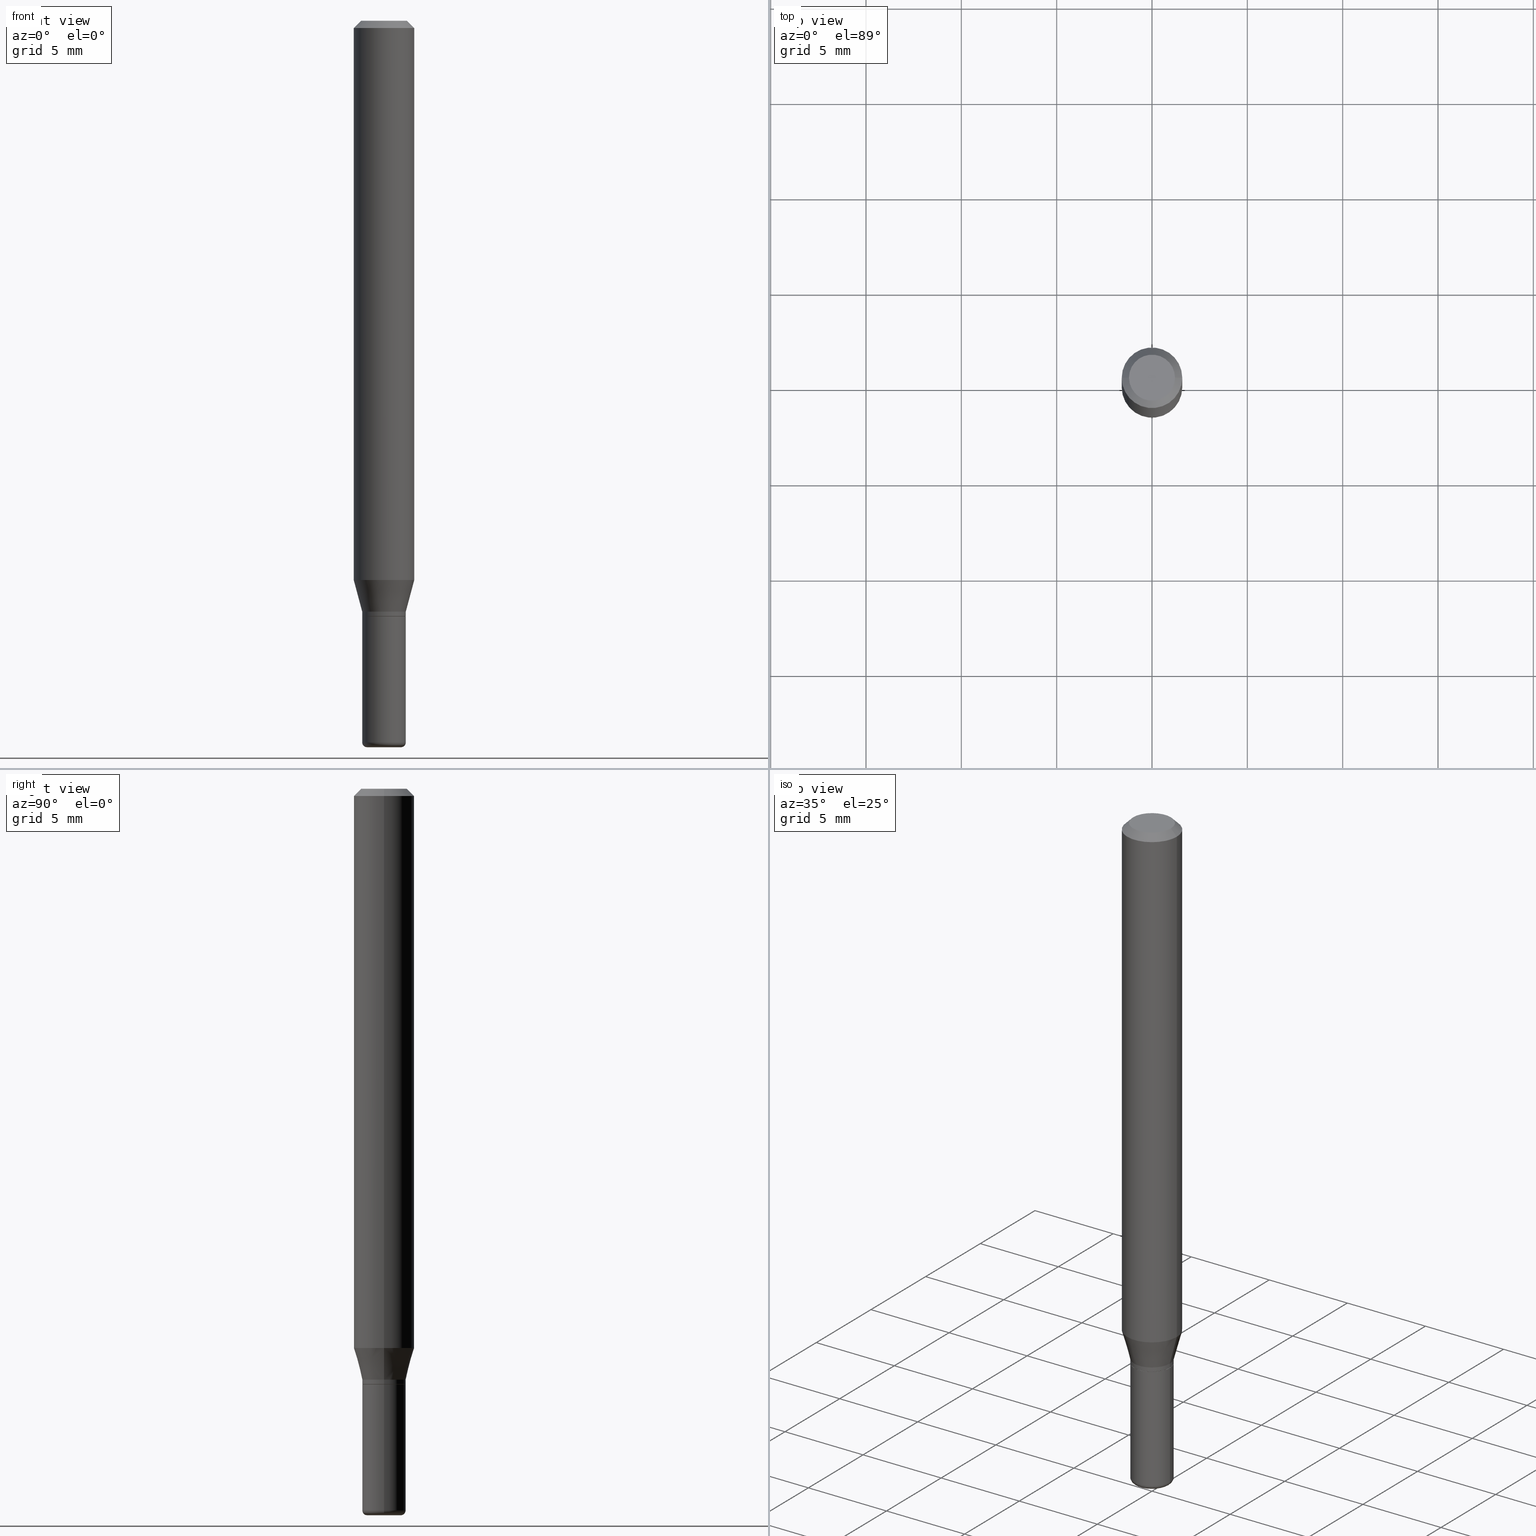
[diagram: canonical four-view strip — front | top / right | iso, engineering-drawing reading convention]
A machine part, canonical four-view strip (front | top / right | iso — engineering-drawing reading convention). The complete STEP part file that produces these views, byte-faithful:
ISO-10303-21;
HEADER;
FILE_DESCRIPTION (( 'STEP AP203' ),
    '1' );
FILE_NAME ('09203.STEP',
    '2024-02-29T23:21:32',
    ( '' ),
    ( '' ),
    'SwSTEP 2.0',
    'SolidWorks 2023',
    '' );
FILE_SCHEMA (( 'CONFIG_CONTROL_DESIGN' ));
ENDSEC;

DATA;
#1 = DIRECTION ( 'NONE',  ( 1.000000000000000000, -6.982962677686273021E-15, 0.000000000000000000 ) ) ;
#2 = ORIENTED_EDGE ( 'NONE', *, *, #108, .F. ) ;
#3 = ORIENTED_EDGE ( 'NONE', *, *, #396, .F. ) ;
#4 = CARTESIAN_POINT ( 'NONE',  ( 3.316907271900976589E-16, 0.04750000000000000749, -2.925296391183627249E-17 ) ) ;
#5 = CC_DESIGN_PERSON_AND_ORGANIZATION_ASSIGNMENT ( #228, #393, ( #162 ) ) ;
#6 = FACE_OUTER_BOUND ( 'NONE', #305, .T. ) ;
#7 = EDGE_LOOP ( 'NONE', ( #182, #146, #114, #389 ) ) ;
#8 = AXIS2_PLACEMENT_3D ( 'NONE', #392, #224, #498 ) ;
#9 = VECTOR ( 'NONE', #363, 39.37007874015748143 ) ;
#10 = FACE_OUTER_BOUND ( 'NONE', #7, .T. ) ;
#11 = VERTEX_POINT ( 'NONE', #269 ) ;
#12 = CC_DESIGN_PERSON_AND_ORGANIZATION_ASSIGNMENT ( #474, #151, ( #184 ) ) ;
#13 =( NAMED_UNIT ( * ) SI_UNIT ( $, .STERADIAN. ) SOLID_ANGLE_UNIT ( ) );
#14 = ORIENTED_EDGE ( 'NONE', *, *, #246, .F. ) ;
#15 = PERSON_AND_ORGANIZATION_ROLE ( 'design_owner' ) ;
#16 = ORIENTED_EDGE ( 'NONE', *, *, #435, .F. ) ;
#17 = DIRECTION ( 'NONE',  ( 7.105427357601001859E-15, 1.000000000000000000, -3.491481338843145583E-15 ) ) ;
#18 = CONICAL_SURFACE ( 'NONE', #76, 0.06250000000000000000, 0.7853981633974488341 ) ;
#19 = APPROVAL_DATE_TIME ( #267, #130 ) ;
#20 = AXIS2_PLACEMENT_3D ( 'NONE', #4, #173, #454 ) ;
#21 = EDGE_CURVE ( 'NONE', #216, #333, #379, .T. ) ;
#22 = ORIENTED_EDGE ( 'NONE', *, *, #477, .T. ) ;
#23 = FACE_OUTER_BOUND ( 'NONE', #493, .T. ) ;
#24 = COORDINATED_UNIVERSAL_TIME_OFFSET ( 5, 0, .BEHIND. ) ;
#25 = DIRECTION ( 'NONE',  ( -2.445468806185136597E-29, 3.491481338843145583E-15, 1.000000000000000000 ) ) ;
#26 = EDGE_CURVE ( 'NONE', #141, #43, #506, .T. ) ;
#27 = APPROVAL_DATE_TIME ( #229, #52 ) ;
#28 = DIRECTION ( 'NONE',  ( -2.445468806185136597E-29, 3.491481338843145583E-15, 1.000000000000000000 ) ) ;
#29 = CONICAL_SURFACE ( 'NONE', #366, 0.04499999999999995670, 0.2617993877991494633 ) ;
#30 = ORGANIZATION ( 'UNSPECIFIED', 'UNSPECIFIED', '' ) ;
#31 = LINE ( 'NONE', #155, #181 ) ;
#32 = CALENDAR_DATE ( 2024, 29, 2 ) ;
#33 = EDGE_CURVE ( 'NONE', #72, #310, #420, .T. ) ;
#34 = ADVANCED_FACE ( 'NONE', ( #6 ), #289, .T. ) ;
#35 = VERTEX_POINT ( 'NONE', #104 ) ;
#36 = CARTESIAN_POINT ( 'NONE',  ( 2.983471943545866670E-29, -4.259607233388637524E-15, -1.220000000000000195 ) ) ;
#37 = EDGE_LOOP ( 'NONE', ( #410, #87, #291, #14 ) ) ;
#38 = FACE_OUTER_BOUND ( 'NONE', #381, .T. ) ;
#39 = ORIENTED_EDGE ( 'NONE', *, *, #461, .F. ) ;
#40 = AXIS2_PLACEMENT_3D ( 'NONE', #516, #208, #135 ) ;
#41 = DIRECTION ( 'NONE',  ( -2.445468806185136597E-29, 3.491481338843145583E-15, 1.000000000000000000 ) ) ;
#42 = LOCAL_TIME ( 18, 21, 32.00000000000000000, #196 ) ;
#43 = VERTEX_POINT ( 'NONE', #311 ) ;
#44 = CARTESIAN_POINT ( 'NONE',  ( 3.007926631607718216E-29, -4.294522046777069173E-15, -1.230000000000000204 ) ) ;
#45 = ORIENTED_EDGE ( 'NONE', *, *, #335, .T. ) ;
#46 = EDGE_CURVE ( 'NONE', #123, #462, #314, .T. ) ;
#47 = CARTESIAN_POINT ( 'NONE',  ( 0.06250000000000000000, -4.888073874380378612E-16, -0.01499999999999970281 ) ) ;
#48 = AXIS2_PLACEMENT_3D ( 'NONE', #350, #394, #354 ) ;
#49 = DIRECTION ( 'NONE',  ( 0.7071067811866199593, -2.468850131083015945E-15, 0.7071067811864750752 ) ) ;
#50 = AXIS2_PLACEMENT_3D ( 'NONE', #517, #332, #170 ) ;
#51 = EDGE_LOOP ( 'NONE', ( #302, #491 ) ) ;
#52 = APPROVAL ( #433, 'UNSPECIFIED' ) ;
#53 = DIRECTION ( 'NONE',  ( 1.000000000000000000, -6.982962677686273021E-15, 0.000000000000000000 ) ) ;
#54 = ORIENTED_EDGE ( 'NONE', *, *, #248, .F. ) ;
#55 = PERSON_AND_ORGANIZATION ( #471, #30 ) ;
#56 = LINE ( 'NONE', #66, #154 ) ;
#57 = ADVANCED_FACE ( 'NONE', ( #23 ), #159, .T. ) ;
#58 = ORIENTED_EDGE ( 'NONE', *, *, #312, .T. ) ;
#59 = CIRCLE ( 'NONE', #40, 0.06250000000000000000 ) ;
#60 = CIRCLE ( 'NONE', #218, 0.04499999999999997058 ) ;
#61 = PRODUCT ( '09203', '09203', '', ( #342 ) ) ;
#62 = CARTESIAN_POINT ( 'NONE',  ( 3.007926631607718216E-29, -4.294522046777069173E-15, -1.230000000000000204 ) ) ;
#63 = ORIENTED_EDGE ( 'NONE', *, *, #211, .F. ) ;
#64 = ORIENTED_EDGE ( 'NONE', *, *, #335, .F. ) ;
#65 = ADVANCED_FACE ( 'NONE', ( #463 ), #187, .T. ) ;
#66 = CARTESIAN_POINT ( 'NONE',  ( 0.04499999999999997058, -3.142333204958818343E-16, 2.194279549108169565E-30 ) ) ;
#67 = ORIENTED_EDGE ( 'NONE', *, *, #21, .F. ) ;
#68 = VERTEX_POINT ( 'NONE', #186 ) ;
#69 = CC_DESIGN_SECURITY_CLASSIFICATION ( #162, ( #184 ) ) ;
#70 = CIRCLE ( 'NONE', #126, 0.04449999999999997014 ) ;
#71 = COORDINATED_UNIVERSAL_TIME_OFFSET ( 5, 0, .BEHIND. ) ;
#72 = VERTEX_POINT ( 'NONE', #101 ) ;
#73 = COORDINATED_UNIVERSAL_TIME_OFFSET ( 5, 0, .BEHIND. ) ;
#74 = DIRECTION ( 'NONE',  ( 2.445468806185136597E-29, -3.491481338843145583E-15, -1.000000000000000000 ) ) ;
#75 = CARTESIAN_POINT ( 'NONE',  ( -0.04499999999999997058, 3.197442310920448746E-16, -2.213520790614706158E-30 ) ) ;
#76 = AXIS2_PLACEMENT_3D ( 'NONE', #452, #91, #117 ) ;
#77 = DIRECTION ( 'NONE',  ( 1.000000000000000000, -6.982962677686266711E-15, 4.852736867747365086E-29 ) ) ;
#78 = CARTESIAN_POINT ( 'NONE',  ( 0.06250000000000000000, -4.811533449433669144E-16, -0.01499999999999970281 ) ) ;
#79 = ADVANCED_FACE ( 'NONE', ( #467 ), #468, .T. ) ;
#80 = CARTESIAN_POINT ( 'NONE',  ( 0.04499999999999995670, -4.573840553884519999E-15, -1.220000000000000195 ) ) ;
#81 = AXIS2_PLACEMENT_3D ( 'NONE', #237, #28, #239 ) ;
#82 = EDGE_CURVE ( 'NONE', #43, #141, #192, .T. ) ;
#83 = DIRECTION ( 'NONE',  ( -2.445468806185136597E-29, 3.491481338843145583E-15, 1.000000000000000000 ) ) ;
#84 = FACE_OUTER_BOUND ( 'NONE', #309, .T. ) ;
#85 = LINE ( 'NONE', #417, #144 ) ;
#86 = ADVANCED_FACE ( 'NONE', ( #293 ), #18, .T. ) ;
#87 = ORIENTED_EDGE ( 'NONE', *, *, #409, .T. ) ;
#88 = VECTOR ( 'NONE', #317, 39.37007874015748143 ) ;
#89 = CARTESIAN_POINT ( 'NONE',  ( 3.668203209277632395E-31, -5.237222008264614861E-17, -0.01499999999999970281 ) ) ;
#90 = CONICAL_SURFACE ( 'NONE', #347, 0.06250000000000000000, 0.7853981633974488341 ) ;
#91 = DIRECTION ( 'NONE',  ( 2.445468806185136597E-29, -3.491481338843145583E-15, -1.000000000000000000 ) ) ;
#92 = DIRECTION ( 'NONE',  ( -2.445468806185136877E-29, 3.491481338843145188E-15, 1.000000000000000000 ) ) ;
#93 = CARTESIAN_POINT ( 'NONE',  ( 3.643748521215853910E-29, -5.202307194876288105E-15, -1.490000000000000213 ) ) ;
#94 = VERTEX_POINT ( 'NONE', #395 ) ;
#95 = AXIS2_PLACEMENT_3D ( 'NONE', #344, #418, #421 ) ;
#96 = DIRECTION ( 'NONE',  ( 0.000000000000000000, 0.000000000000000000, 1.000000000000000000 ) ) ;
#97 = EDGE_LOOP ( 'NONE', ( #131, #502, #422, #373 ) ) ;
#98 = CARTESIAN_POINT ( 'NONE',  ( 0.000000000000000000, 0.000000000000000000, 0.000000000000000000 ) ) ;
#99 =( LENGTH_UNIT ( ) NAMED_UNIT ( * ) SI_UNIT ( $, .METRE. ) );
#100 = ORIENTED_EDGE ( 'NONE', *, *, #312, .F. ) ;
#101 = CARTESIAN_POINT ( 'NONE',  ( -0.06250000000000000000, -1.597884641570968368E-15, -0.01499999999999970281 ) ) ;
#102 = APPROVAL_ROLE ( '' ) ;
#103 = EDGE_CURVE ( 'NONE', #180, #310, #404, .T. ) ;
#104 = CARTESIAN_POINT ( 'NONE',  ( -0.04499999999999995670, -3.763674637602973398E-15, -1.220000000000000195 ) ) ;
#105 = CALENDAR_DATE ( 2024, 29, 2 ) ;
#106 = AXIS2_PLACEMENT_3D ( 'NONE', #89, #415, #296 ) ;
#107 = LINE ( 'NONE', #75, #113 ) ;
#108 = EDGE_CURVE ( 'NONE', #35, #353, #238, .T. ) ;
#109 = DIRECTION ( 'NONE',  ( -2.445468806185136597E-29, 3.491481338843145583E-15, 1.000000000000000000 ) ) ;
#110 = APPROVAL_STATUS ( 'not_yet_approved' ) ;
#111 = CARTESIAN_POINT ( 'NONE',  ( 2.823756201468231071E-29, -4.031575482759415678E-15, -1.154689110867544555 ) ) ;
#112 = PERSON_AND_ORGANIZATION ( #471, #30 ) ;
#113 = VECTOR ( 'NONE', #195, 39.37007874015748143 ) ;
#114 = ORIENTED_EDGE ( 'NONE', *, *, #496, .T. ) ;
#115 = AXIS2_PLACEMENT_3D ( 'NONE', #206, #83, #334 ) ;
#116 = LOCAL_TIME ( 18, 21, 32.00000000000000000, #118 ) ;
#117 = DIRECTION ( 'NONE',  ( -1.000000000000000000, 6.982962677686266711E-15, 0.000000000000000000 ) ) ;
#118 = COORDINATED_UNIVERSAL_TIME_OFFSET ( 5, 0, .BEHIND. ) ;
#119 = EDGE_CURVE ( 'NONE', #462, #141, #107, .T. ) ;
#120 = EDGE_LOOP ( 'NONE', ( #200, #346, #64, #67 ) ) ;
#121 = CARTESIAN_POINT ( 'NONE',  ( -0.04500000000000000527, -4.428670389734633666E-15, -1.230000000000000204 ) ) ;
#122 = APPROVAL_DATE_TIME ( #324, #292 ) ;
#123 = VERTEX_POINT ( 'NONE', #272 ) ;
#124 = EDGE_CURVE ( 'NONE', #333, #310, #31, .T. ) ;
#125 = CYLINDRICAL_SURFACE ( 'NONE', #50, 0.06250000000000000000 ) ;
#126 = AXIS2_PLACEMENT_3D ( 'NONE', #191, #359, #436 ) ;
#127 = CARTESIAN_POINT ( 'NONE',  ( 3.006703897204625975E-29, -4.292776306107648458E-15, -1.229500000000000259 ) ) ;
#128 = ORIENTED_EDGE ( 'NONE', *, *, #435, .T. ) ;
#129 = LINE ( 'NONE', #290, #450 ) ;
#130 = APPROVAL ( #110, 'UNSPECIFIED' ) ;
#131 = ORIENTED_EDGE ( 'NONE', *, *, #103, .F. ) ;
#132 = DIRECTION ( 'NONE',  ( 1.000000000000000000, -6.982962677686266711E-15, 4.852736867747365086E-29 ) ) ;
#133 = DIRECTION ( 'NONE',  ( 1.000000000000000000, -6.982962677686269077E-15, 0.000000000000000000 ) ) ;
#134 = AXIS2_PLACEMENT_3D ( 'NONE', #460, #96, #348 ) ;
#135 = DIRECTION ( 'NONE',  ( 1.000000000000000000, -6.982962677686270655E-15, 0.000000000000000000 ) ) ;
#136 = CIRCLE ( 'NONE', #322, 0.04499999999999995670 ) ;
#137 = ORIENTED_EDGE ( 'NONE', *, *, #82, .T. ) ;
#138 = FACE_OUTER_BOUND ( 'NONE', #51, .T. ) ;
#139 = EDGE_CURVE ( 'NONE', #11, #426, #478, .T. ) ;
#140 = CARTESIAN_POINT ( 'NONE',  ( 3.142333204959120083E-16, 0.04499999999999570316, -1.230000000000000204 ) ) ;
#141 = VERTEX_POINT ( 'NONE', #121 ) ;
#142 = VECTOR ( 'NONE', #438, 39.37007874015748854 ) ;
#143 = CARTESIAN_POINT ( 'NONE',  ( -0.03499999999999999639, -4.953617237360252819E-15, -1.490000000000000213 ) ) ;
#144 = VECTOR ( 'NONE', #92, 39.37007874015748143 ) ;
#145 = PLANE ( 'NONE',  #405 ) ;
#146 = ORIENTED_EDGE ( 'NONE', *, *, #396, .T. ) ;
#147 = DIRECTION ( 'NONE',  ( 1.000000000000000000, -6.982962677686267499E-15, 4.876176775795935793E-29 ) ) ;
#148 = ADVANCED_FACE ( 'NONE', ( #362 ), #274, .T. ) ;
#149 = ORIENTED_EDGE ( 'NONE', *, *, #139, .T. ) ;
#150 = DIRECTION ( 'NONE',  ( 0.2588190451025207395, 1.565188264969626109E-15, 0.9659258262890682012 ) ) ;
#151 = PERSON_AND_ORGANIZATION_ROLE ( 'creator' ) ;
#152 = DIRECTION ( 'NONE',  ( 1.000000000000000000, -6.982962677686261977E-15, 0.000000000000000000 ) ) ;
#153 = AXIS2_PLACEMENT_3D ( 'NONE', #143, #17, #230 ) ;
#154 = VECTOR ( 'NONE', #456, 39.37007874015748143 ) ;
#155 = CARTESIAN_POINT ( 'NONE',  ( 0.06250000000000000000, -4.364351673553916694E-16, 3.047610484872459871E-30 ) ) ;
#156 = CYLINDRICAL_SURFACE ( 'NONE', #81, 0.04499999999999996364 ) ;
#157 = APPLICATION_PROTOCOL_DEFINITION ( 'international standard', 'config_control_design', 1994, #189 ) ;
#158 = CARTESIAN_POINT ( 'NONE',  ( 3.668203209277632395E-31, -5.237222008264614861E-17, -0.01499999999999970281 ) ) ;
#159 = TOROIDAL_SURFACE ( 'NONE', #48, 0.03499999999999999639, 0.009999999999999946432 ) ;
#160 = ORIENTED_EDGE ( 'NONE', *, *, #242, .T. ) ;
#161 = CIRCLE ( 'NONE', #115, 0.04449999999999997014 ) ;
#162 = SECURITY_CLASSIFICATION ( '', '', #428 ) ;
#163 = CARTESIAN_POINT ( 'NONE',  ( 3.643748521215853910E-29, -5.202307194876288105E-15, -1.490000000000000213 ) ) ;
#164 = CARTESIAN_POINT ( 'NONE',  ( 0.04499999999999997058, -4.607009626603530145E-15, -1.229500000000000259 ) ) ;
#165 = ORIENTED_EDGE ( 'NONE', *, *, #409, .F. ) ;
#166 = CARTESIAN_POINT ( 'NONE',  ( 0.03500000000000000333, -5.481625701983738143E-15, -1.500000000000000222 ) ) ;
#167 = VECTOR ( 'NONE', #278, 39.37007874015748143 ) ;
#168 = ADVANCED_FACE ( 'NONE', ( #38 ), #330, .T. ) ;
#169 = CARTESIAN_POINT ( 'NONE',  ( 2.983471943545866670E-29, -4.259607233388637524E-15, -1.220000000000000195 ) ) ;
#170 = DIRECTION ( 'NONE',  ( 1.000000000000000000, -6.982962677686266711E-15, 4.876176775795935793E-29 ) ) ;
#171 = ORIENTED_EDGE ( 'NONE', *, *, #205, .F. ) ;
#172 = DIRECTION ( 'NONE',  ( -2.445468806185136597E-29, 3.491481338843145583E-15, 1.000000000000000000 ) ) ;
#173 = DIRECTION ( 'NONE',  ( 2.438088387897960049E-29, -3.491481338843145188E-15, -1.000000000000000000 ) ) ;
#174 = CARTESIAN_POINT ( 'NONE',  ( 0.03499999999999999639, -5.446710888595307282E-15, -1.490000000000000213 ) ) ;
#175 = CONICAL_SURFACE ( 'NONE', #429, 0.04499999999999995670, 0.2617993877991494633 ) ;
#176 = CARTESIAN_POINT ( 'NONE',  ( -0.06250000000000000000, 3.840629472727455270E-16, -0.01499999999999970281 ) ) ;
#177 = ORIENTED_EDGE ( 'NONE', *, *, #477, .F. ) ;
#178 = DIRECTION ( 'NONE',  ( 1.000000000000000000, -6.982962677686272233E-15, 0.000000000000000000 ) ) ;
#179 = ORIENTED_EDGE ( 'NONE', *, *, #124, .F. ) ;
#180 = VERTEX_POINT ( 'NONE', #476 ) ;
#181 = VECTOR ( 'NONE', #439, 39.37007874015748143 ) ;
#182 = ORIENTED_EDGE ( 'NONE', *, *, #46, .F. ) ;
#183 = AXIS2_PLACEMENT_3D ( 'NONE', #163, #356, #319 ) ;
#184 = PRODUCT_DEFINITION_FORMATION_WITH_SPECIFIED_SOURCE ( 'ANY', '', #61, .NOT_KNOWN. ) ;
#185 = ORIENTED_EDGE ( 'NONE', *, *, #33, .F. ) ;
#186 = CARTESIAN_POINT ( 'NONE',  ( -0.04750000000000000749, 3.578768372314221353E-16, 2.731847993664239060E-16 ) ) ;
#187 = CYLINDRICAL_SURFACE ( 'NONE', #329, 0.04499999999999996364 ) ;
#188 = ADVANCED_FACE ( 'NONE', ( #432 ), #156, .T. ) ;
#189 = APPLICATION_CONTEXT ( 'configuration controlled 3d designs of mechanical parts and assemblies' ) ;
#190 = DATE_TIME_ROLE ( 'creation_date' ) ;
#191 = CARTESIAN_POINT ( 'NONE',  ( 3.007926631607718216E-29, -4.294522046777069173E-15, -1.230000000000000204 ) ) ;
#192 = CIRCLE ( 'NONE', #256, 0.04499999999999999833 ) ;
#193 = AXIS2_PLACEMENT_3D ( 'NONE', #174, #340, #178 ) ;
#194 = APPLICATION_CONTEXT ( 'configuration controlled 3d designs of mechanical parts and assemblies' ) ;
#195 = DIRECTION ( 'NONE',  ( -2.445468806185136877E-29, 3.491481338843145188E-15, 1.000000000000000000 ) ) ;
#196 = COORDINATED_UNIVERSAL_TIME_OFFSET ( 5, 0, .BEHIND. ) ;
#197 = DIRECTION ( 'NONE',  ( -2.445468806185136597E-29, 3.491481338843145583E-15, 1.000000000000000000 ) ) ;
#198 = DIRECTION ( 'NONE',  ( -2.445468806185136597E-29, 3.491481338843145583E-15, 1.000000000000000000 ) ) ;
#199 = CALENDAR_DATE ( 2024, 29, 2 ) ;
#200 = ORIENTED_EDGE ( 'NONE', *, *, #286, .T. ) ;
#201 = AXIS2_PLACEMENT_3D ( 'NONE', #140, #255, #385 ) ;
#202 = APPROVAL_PERSON_ORGANIZATION ( #360, #130, #102 ) ;
#203 = DIRECTION ( 'NONE',  ( 1.000000000000000000, -6.982962677686275388E-15, 0.000000000000000000 ) ) ;
#204 = CARTESIAN_POINT ( 'NONE',  ( -6.680649051745406845E-45, 9.538196290434862081E-31, 2.731847993664263218E-16 ) ) ;
#205 = EDGE_CURVE ( 'NONE', #388, #216, #280, .T. ) ;
#206 = CARTESIAN_POINT ( 'NONE',  ( 3.007926631607718216E-29, -4.294522046777069173E-15, -1.230000000000000204 ) ) ;
#207 = AXIS2_PLACEMENT_3D ( 'NONE', #508, #109, #77 ) ;
#208 = DIRECTION ( 'NONE',  ( -2.445468806185136597E-29, 3.491481338843145583E-15, 1.000000000000000000 ) ) ;
#209 = ORIENTED_EDGE ( 'NONE', *, *, #327, .T. ) ;
#210 = CARTESIAN_POINT ( 'NONE',  ( 3.007926631607718216E-29, -4.294522046777069173E-15, -1.230000000000000204 ) ) ;
#211 = EDGE_CURVE ( 'NONE', #457, #123, #277, .T. ) ;
#212 = FACE_OUTER_BOUND ( 'NONE', #306, .T. ) ;
#213 = ORIENTED_EDGE ( 'NONE', *, *, #496, .F. ) ;
#214 = ORIENTED_EDGE ( 'NONE', *, *, #397, .T. ) ;
#215 = DIRECTION ( 'NONE',  ( -2.445468806185136597E-29, 3.491481338843145583E-15, 1.000000000000000000 ) ) ;
#216 = VERTEX_POINT ( 'NONE', #80 ) ;
#217 =( NAMED_UNIT ( * ) PLANE_ANGLE_UNIT ( ) SI_UNIT ( $, .RADIAN. ) );
#218 = AXIS2_PLACEMENT_3D ( 'NONE', #127, #243, #1 ) ;
#219 = EDGE_LOOP ( 'NONE', ( #338, #497, #263, #165 ) ) ;
#220 = CC_DESIGN_PERSON_AND_ORGANIZATION_ASSIGNMENT ( #244, #400, ( #318 ) ) ;
#221 = ORIENTED_EDGE ( 'NONE', *, *, #103, .T. ) ;
#222 = ORIENTED_EDGE ( 'NONE', *, *, #211, .T. ) ;
#223 = DIRECTION ( 'NONE',  ( -0.7071067811865479058, 2.468850131082261005E-15, -0.7071067811865471286 ) ) ;
#224 = DIRECTION ( 'NONE',  ( -2.445468806185136597E-29, 3.491481338843145583E-15, 1.000000000000000000 ) ) ;
#225 = AXIS2_PLACEMENT_3D ( 'NONE', #283, #247, #53 ) ;
#226 = APPROVAL_ROLE ( '' ) ;
#227 = LOCAL_TIME ( 18, 21, 32.00000000000000000, #24 ) ;
#228 = PERSON_AND_ORGANIZATION ( #471, #30 ) ;
#229 = DATE_AND_TIME ( #232, #453 ) ;
#230 = DIRECTION ( 'NONE',  ( -1.000000000000000000, 7.105427357600962416E-15, 0.000000000000000000 ) ) ;
#231 = DATE_TIME_ROLE ( 'classification_date' ) ;
#232 = CALENDAR_DATE ( 2024, 29, 2 ) ;
#233 = DIRECTION ( 'NONE',  ( 1.000000000000000000, -6.982962677686270655E-15, 0.000000000000000000 ) ) ;
#234 = ADVANCED_FACE ( 'NONE', ( #511 ), #90, .T. ) ;
#235 = CARTESIAN_POINT ( 'NONE',  ( 3.668203209277704895E-29, -5.237222008264718177E-15, -1.500000000000000222 ) ) ;
#236 = AXIS2_PLACEMENT_3D ( 'NONE', #448, #249, #414 ) ;
#237 = CARTESIAN_POINT ( 'NONE',  ( 0.000000000000000000, 0.000000000000000000, 0.000000000000000000 ) ) ;
#238 = LINE ( 'NONE', #323, #142 ) ;
#239 = DIRECTION ( 'NONE',  ( 1.000000000000000000, -6.982962677686267499E-15, 4.876176775795935793E-29 ) ) ;
#240 = AXIS2_PLACEMENT_3D ( 'NONE', #44, #370, #254 ) ;
#241 = LOCAL_TIME ( 18, 21, 32.00000000000000000, #73 ) ;
#242 = EDGE_CURVE ( 'NONE', #253, #462, #459, .T. ) ;
#243 = DIRECTION ( 'NONE',  ( -2.445468806185136597E-29, 3.491481338843145583E-15, 1.000000000000000000 ) ) ;
#244 = PERSON_AND_ORGANIZATION ( #471, #30 ) ;
#245 = DIRECTION ( 'NONE',  ( 1.000000000000000000, -6.982962677686275388E-15, 0.000000000000000000 ) ) ;
#246 = EDGE_CURVE ( 'NONE', #35, #216, #316, .T. ) ;
#247 = DIRECTION ( 'NONE',  ( -2.445468806185136597E-29, 3.491481338843145583E-15, 1.000000000000000000 ) ) ;
#248 = EDGE_CURVE ( 'NONE', #353, #333, #358, .T. ) ;
#249 = DIRECTION ( 'NONE',  ( -2.445468806185136597E-29, 3.491481338843145583E-15, 1.000000000000000000 ) ) ;
#250 = CIRCLE ( 'NONE', #514, 0.04750000000000000749 ) ;
#251 = APPROVAL_PERSON_ORGANIZATION ( #273, #292, #226 ) ;
#252 = DIRECTION ( 'NONE',  ( -2.445468806185136597E-29, 3.491481338843145583E-15, 1.000000000000000000 ) ) ;
#253 = VERTEX_POINT ( 'NONE', #472 ) ;
#254 = DIRECTION ( 'NONE',  ( 1.000000000000000000, -6.982962677686261977E-15, 0.000000000000000000 ) ) ;
#255 = DIRECTION ( 'NONE',  ( 2.438088387897960049E-29, -3.491481338843145188E-15, -1.000000000000000000 ) ) ;
#256 = AXIS2_PLACEMENT_3D ( 'NONE', #210, #172, #133 ) ;
#257 = CIRCLE ( 'NONE', #95, 0.04499999999999994976 ) ;
#258 = CC_DESIGN_APPROVAL ( #130, ( #184 ) ) ;
#259 = EDGE_CURVE ( 'NONE', #11, #94, #70, .T. ) ;
#260 = EDGE_CURVE ( 'NONE', #180, #68, #483, .T. ) ;
#261 = PRODUCT_DEFINITION_SHAPE ( 'NONE', 'NONE',  #318 ) ;
#262 = CARTESIAN_POINT ( 'NONE',  ( -0.04499999999999994976, -4.428670389734633666E-15, -1.490000000000000213 ) ) ;
#263 = ORIENTED_EDGE ( 'NONE', *, *, #425, .T. ) ;
#264 = ORIENTED_EDGE ( 'NONE', *, *, #26, .T. ) ;
#265 = ORIENTED_EDGE ( 'NONE', *, *, #21, .T. ) ;
#266 = ORIENTED_EDGE ( 'NONE', *, *, #242, .F. ) ;
#267 = DATE_AND_TIME ( #105, #42 ) ;
#268 = ADVANCED_FACE ( 'NONE', ( #399 ), #29, .T. ) ;
#269 = CARTESIAN_POINT ( 'NONE',  ( -0.04449999999999997014, -3.975681302189714292E-15, -1.230000000000000204 ) ) ;
#270 = DATE_AND_TIME ( #355, #227 ) ;
#271 = PRODUCT_RELATED_PRODUCT_CATEGORY ( 'detail', '', ( #61 ) ) ;
#272 = CARTESIAN_POINT ( 'NONE',  ( -0.03500000000000000333, -4.935547507266464392E-15, -1.500000000000000222 ) ) ;
#273 = PERSON_AND_ORGANIZATION ( #471, #30 ) ;
#274 = CYLINDRICAL_SURFACE ( 'NONE', #294, 0.04499999999999997058 ) ;
#275 = DIRECTION ( 'NONE',  ( -2.445468806185136597E-29, 3.491481338843145583E-15, 1.000000000000000000 ) ) ;
#276 = CLOSED_SHELL ( 'NONE', ( #188, #168, #86, #341, #300, #268, #79, #234, #446, #481, #451, #65 ) ) ;
#277 = CIRCLE ( 'NONE', #295, 0.03500000000000000333 ) ;
#278 = DIRECTION ( 'NONE',  ( 0.7071067811865479058, -7.319954787623257623E-15, -0.7071067811865471286 ) ) ;
#279 = ORIENTED_EDGE ( 'NONE', *, *, #124, .T. ) ;
#280 = LINE ( 'NONE', #434, #9 ) ;
#281 = SHAPE_DEFINITION_REPRESENTATION ( #261, #487 ) ;
#282 = ADVANCED_FACE ( 'NONE', ( #368 ), #482, .F. ) ;
#283 = CARTESIAN_POINT ( 'NONE',  ( 3.006703897204625975E-29, -4.292776306107648458E-15, -1.229500000000000259 ) ) ;
#284 = AXIS2_PLACEMENT_3D ( 'NONE', #93, #215, #380 ) ;
#285 = AXIS2_PLACEMENT_3D ( 'NONE', #486, #252, #480 ) ;
#286 = EDGE_CURVE ( 'NONE', #216, #35, #136, .T. ) ;
#287 = CARTESIAN_POINT ( 'NONE',  ( 3.582686580359766038E-29, -5.359686688179453325E-15, -1.500000000000000222 ) ) ;
#288 = DIRECTION ( 'NONE',  ( -2.445468806185136597E-29, 3.491481338843145583E-15, 1.000000000000000000 ) ) ;
#289 = CYLINDRICAL_SURFACE ( 'NONE', #8, 0.04499999999999997058 ) ;
#290 = CARTESIAN_POINT ( 'NONE',  ( -0.04499999999999996364, 3.197442310920448253E-16, -2.213520790614705808E-30 ) ) ;
#291 = ORIENTED_EDGE ( 'NONE', *, *, #205, .T. ) ;
#292 = APPROVAL ( #298, 'UNSPECIFIED' ) ;
#293 = FACE_OUTER_BOUND ( 'NONE', #345, .T. ) ;
#294 = AXIS2_PLACEMENT_3D ( 'NONE', #403, #41, #470 ) ;
#295 = AXIS2_PLACEMENT_3D ( 'NONE', #235, #198, #365 ) ;
#296 = DIRECTION ( 'NONE',  ( 1.000000000000000000, -6.982962677686266711E-15, 0.000000000000000000 ) ) ;
#297 = EDGE_LOOP ( 'NONE', ( #63, #3 ) ) ;
#298 = APPROVAL_STATUS ( 'not_yet_approved' ) ;
#299 = FACE_OUTER_BOUND ( 'NONE', #367, .T. ) ;
#300 = ADVANCED_FACE ( 'NONE', ( #375 ), #175, .T. ) ;
#301 = LENGTH_MEASURE_WITH_UNIT ( LENGTH_MEASURE( 0.02539999999999999897 ), #99 );
#302 = ORIENTED_EDGE ( 'NONE', *, *, #361, .F. ) ;
#303 = CIRCLE ( 'NONE', #106, 0.06250000000000000000 ) ;
#304 = APPROVAL_ROLE ( '' ) ;
#305 = EDGE_LOOP ( 'NONE', ( #419, #325, #22, #466 ) ) ;
#306 = EDGE_LOOP ( 'NONE', ( #430, #313 ) ) ;
#307 = DIRECTION ( 'NONE',  ( -2.438088387897960049E-29, 3.491481338843145188E-15, 1.000000000000000000 ) ) ;
#308 = ORIENTED_EDGE ( 'NONE', *, *, #361, .T. ) ;
#309 = EDGE_LOOP ( 'NONE', ( #45, #58, #16, #179 ) ) ;
#310 = VERTEX_POINT ( 'NONE', #47 ) ;
#311 = CARTESIAN_POINT ( 'NONE',  ( 0.04499999999999999833, -4.608755367272951648E-15, -1.230000000000000204 ) ) ;
#312 = EDGE_CURVE ( 'NONE', #353, #72, #85, .T. ) ;
#313 = ORIENTED_EDGE ( 'NONE', *, *, #260, .T. ) ;
#314 = CIRCLE ( 'NONE', #153, 0.009999999999999948166 ) ;
#315 = DIRECTION ( 'NONE',  ( -2.445468806185136597E-29, 3.491481338843145583E-15, 1.000000000000000000 ) ) ;
#316 = CIRCLE ( 'NONE', #494, 0.04499999999999995670 ) ;
#317 = DIRECTION ( 'NONE',  ( -0.7071067811866199593, 7.493145998870616062E-15, 0.7071067811864750752 ) ) ;
#318 = PRODUCT_DEFINITION ( 'UNKNOWN', '', #184, #343 ) ;
#319 = DIRECTION ( 'NONE',  ( 1.000000000000000000, -6.982962677686276177E-15, 0.000000000000000000 ) ) ;
#320 = DIRECTION ( 'NONE',  ( -1.000000000000000000, 6.982962677686266711E-15, 0.000000000000000000 ) ) ;
#321 = VECTOR ( 'NONE', #150, 39.37007874015748854 ) ;
#322 = AXIS2_PLACEMENT_3D ( 'NONE', #445, #518, #408 ) ;
#323 = CARTESIAN_POINT ( 'NONE',  ( -0.04499999999999995670, -3.939863002296592945E-15, -1.220000000000000195 ) ) ;
#324 = DATE_AND_TIME ( #199, #116 ) ;
#325 = ORIENTED_EDGE ( 'NONE', *, *, #510, .T. ) ;
#326 = CARTESIAN_POINT ( 'NONE',  ( 0.06250000000000000000, -4.468010650114807348E-15, -1.154689110867544555 ) ) ;
#327 = EDGE_CURVE ( 'NONE', #388, #426, #60, .T. ) ;
#328 = LINE ( 'NONE', #176, #499 ) ;
#329 = AXIS2_PLACEMENT_3D ( 'NONE', #98, #503, #147 ) ;
#330 = CONICAL_SURFACE ( 'NONE', #390, 0.04449999999999997014, 0.7853981633975507526 ) ;
#331 = PERSON_AND_ORGANIZATION ( #471, #30 ) ;
#332 = DIRECTION ( 'NONE',  ( -2.445468806185136597E-29, 3.491481338843145583E-15, 1.000000000000000000 ) ) ;
#333 = VERTEX_POINT ( 'NONE', #326 ) ;
#334 = DIRECTION ( 'NONE',  ( 1.000000000000000000, -6.982962677686261977E-15, 0.000000000000000000 ) ) ;
#335 = EDGE_CURVE ( 'NONE', #333, #353, #59, .T. ) ;
#336 = CARTESIAN_POINT ( 'NONE',  ( 3.668203209277632395E-31, -5.237222008264614861E-17, -0.01499999999999970281 ) ) ;
#337 = DIRECTION ( 'NONE',  ( -2.445468806185136597E-29, 3.491481338843145583E-15, 1.000000000000000000 ) ) ;
#338 = ORIENTED_EDGE ( 'NONE', *, *, #139, .F. ) ;
#339 = TOROIDAL_SURFACE ( 'NONE', #284, 0.03499999999999999639, 0.009999999999999946432 ) ;
#340 = DIRECTION ( 'NONE',  ( -6.982962677686266711E-15, -1.000000000000000000, 3.491481338843145583E-15 ) ) ;
#341 = ADVANCED_FACE ( 'NONE', ( #84 ), #125, .T. ) ;
#342 = MECHANICAL_CONTEXT ( 'NONE', #194, 'mechanical' ) ;
#343 = DESIGN_CONTEXT ( 'detailed design', #189, 'design' ) ;
#344 = CARTESIAN_POINT ( 'NONE',  ( 3.643748521215853910E-29, -5.202307194876288105E-15, -1.490000000000000213 ) ) ;
#345 = EDGE_LOOP ( 'NONE', ( #386, #221, #128, #39 ) ) ;
#346 = ORIENTED_EDGE ( 'NONE', *, *, #108, .T. ) ;
#347 = AXIS2_PLACEMENT_3D ( 'NONE', #158, #74, #320 ) ;
#348 = DIRECTION ( 'NONE',  ( 1.000000000000000000, 0.000000000000000000, 0.000000000000000000 ) ) ;
#349 = ORIENTED_EDGE ( 'NONE', *, *, #119, .T. ) ;
#350 = CARTESIAN_POINT ( 'NONE',  ( 3.643748521215853910E-29, -5.202307194876288105E-15, -1.490000000000000213 ) ) ;
#351 = DIMENSIONAL_EXPONENTS ( 1.000000000000000000, 0.000000000000000000, 0.000000000000000000, 0.000000000000000000, 0.000000000000000000, 0.000000000000000000, 0.000000000000000000 ) ;
#352 = PERSON_AND_ORGANIZATION_ROLE ( 'design_supplier' ) ;
#353 = VERTEX_POINT ( 'NONE', #449 ) ;
#354 = DIRECTION ( 'NONE',  ( 1.000000000000000000, -6.982962677686276177E-15, 4.883557194083116264E-29 ) ) ;
#355 = CALENDAR_DATE ( 2024, 29, 2 ) ;
#356 = DIRECTION ( 'NONE',  ( -2.445468806185136597E-29, 3.491481338843145583E-15, 1.000000000000000000 ) ) ;
#357 = AXIS2_PLACEMENT_3D ( 'NONE', #431, #25, #416 ) ;
#358 = CIRCLE ( 'NONE', #413, 0.06250000000000000000 ) ;
#359 = DIRECTION ( 'NONE',  ( -2.445468806185136597E-29, 3.491481338843145583E-15, 1.000000000000000000 ) ) ;
#360 = PERSON_AND_ORGANIZATION ( #471, #30 ) ;
#361 = EDGE_CURVE ( 'NONE', #94, #11, #161, .T. ) ;
#362 = FACE_OUTER_BOUND ( 'NONE', #485, .T. ) ;
#363 = DIRECTION ( 'NONE',  ( -2.445468806185136877E-29, 3.491481338843145188E-15, 1.000000000000000000 ) ) ;
#364 = ORIENTED_EDGE ( 'NONE', *, *, #46, .T. ) ;
#365 = DIRECTION ( 'NONE',  ( 1.000000000000000000, -6.982962677686276966E-15, 0.000000000000000000 ) ) ;
#366 = AXIS2_PLACEMENT_3D ( 'NONE', #36, #197, #203 ) ;
#367 = EDGE_LOOP ( 'NONE', ( #137, #264 ) ) ;
#368 = FACE_OUTER_BOUND ( 'NONE', #297, .T. ) ;
#369 = EDGE_CURVE ( 'NONE', #68, #180, #250, .T. ) ;
#370 = DIRECTION ( 'NONE',  ( -2.445468806185136597E-29, 3.491481338843145583E-15, 1.000000000000000000 ) ) ;
#371 = DIRECTION ( 'NONE',  ( 1.000000000000000000, -6.982962677686265922E-15, 4.876176775795935793E-29 ) ) ;
#372 = CLOSED_SHELL ( 'NONE', ( #57, #148, #464, #34, #490, #282 ) ) ;
#373 = ORIENTED_EDGE ( 'NONE', *, *, #33, .T. ) ;
#374 = CC_DESIGN_DATE_AND_TIME_ASSIGNMENT ( #270, #231, ( #162 ) ) ;
#375 = FACE_OUTER_BOUND ( 'NONE', #120, .T. ) ;
#376 = EDGE_LOOP ( 'NONE', ( #2, #479, #265, #54 ) ) ;
#377 = ORIENTED_EDGE ( 'NONE', *, *, #286, .F. ) ;
#378 = PLANE ( 'NONE',  #20 ) ;
#379 = LINE ( 'NONE', #427, #321 ) ;
#380 = DIRECTION ( 'NONE',  ( 1.000000000000000000, -6.982962677686276177E-15, 4.883557194083116264E-29 ) ) ;
#381 = EDGE_LOOP ( 'NONE', ( #308, #149, #495, #488 ) ) ;
#382 = CIRCLE ( 'NONE', #225, 0.04499999999999997058 ) ;
#383 = APPLICATION_PROTOCOL_DEFINITION ( 'international standard', 'config_control_design', 1994, #194 ) ;
#384 = CC_DESIGN_PERSON_AND_ORGANIZATION_ASSIGNMENT ( #55, #15, ( #61 ) ) ;
#385 = DIRECTION ( 'NONE',  ( -1.000000000000000000, 6.982962677686265922E-15, -4.876176775795935793E-29 ) ) ;
#386 = ORIENTED_EDGE ( 'NONE', *, *, #260, .F. ) ;
#387 = PLANE ( 'NONE',  #201 ) ;
#388 = VERTEX_POINT ( 'NONE', #164 ) ;
#389 = ORIENTED_EDGE ( 'NONE', *, *, #510, .F. ) ;
#390 = AXIS2_PLACEMENT_3D ( 'NONE', #515, #509, #152 ) ;
#391 = CC_DESIGN_DATE_AND_TIME_ASSIGNMENT ( #504, #190, ( #318 ) ) ;
#392 = CARTESIAN_POINT ( 'NONE',  ( 0.000000000000000000, 0.000000000000000000, 0.000000000000000000 ) ) ;
#393 = PERSON_AND_ORGANIZATION_ROLE ( 'classification_officer' ) ;
#394 = DIRECTION ( 'NONE',  ( -2.445468806185136597E-29, 3.491481338843145583E-15, 1.000000000000000000 ) ) ;
#395 = CARTESIAN_POINT ( 'NONE',  ( 0.04449999999999997014, -4.605263885934107852E-15, -1.230000000000000204 ) ) ;
#396 = EDGE_CURVE ( 'NONE', #123, #457, #469, .T. ) ;
#397 = EDGE_CURVE ( 'NONE', #426, #35, #129, .T. ) ;
#398 = CONICAL_SURFACE ( 'NONE', #240, 0.04449999999999997014, 0.7853981633975507526 ) ;
#399 = FACE_OUTER_BOUND ( 'NONE', #376, .T. ) ;
#400 = PERSON_AND_ORGANIZATION_ROLE ( 'creator' ) ;
#401 = DIRECTION ( 'NONE',  ( 1.000000000000000000, -6.982962677686275388E-15, 0.000000000000000000 ) ) ;
#402 = MANIFOLD_SOLID_BREP ( 'Body-Move/Copy2[2]', #276 ) ;
#403 = CARTESIAN_POINT ( 'NONE',  ( 0.000000000000000000, 0.000000000000000000, 0.000000000000000000 ) ) ;
#404 = LINE ( 'NONE', #78, #167 ) ;
#405 = AXIS2_PLACEMENT_3D ( 'NONE', #62, #307, #423 ) ;
#406 = MANIFOLD_SOLID_BREP ( 'Body-Move/Copy2[1]', #372 ) ;
#407 = FACE_OUTER_BOUND ( 'NONE', #219, .T. ) ;
#408 = DIRECTION ( 'NONE',  ( 1.000000000000000000, -6.982962677686275388E-15, 0.000000000000000000 ) ) ;
#409 = EDGE_CURVE ( 'NONE', #426, #388, #382, .T. ) ;
#410 = ORIENTED_EDGE ( 'NONE', *, *, #397, .F. ) ;
#411 = CARTESIAN_POINT ( 'NONE',  ( 0.04449999999999997014, -4.605263885934107852E-15, -1.230000000000000204 ) ) ;
#412 = ORIENTED_EDGE ( 'NONE', *, *, #248, .T. ) ;
#413 = AXIS2_PLACEMENT_3D ( 'NONE', #111, #275, #233 ) ;
#414 = DIRECTION ( 'NONE',  ( 1.000000000000000000, -6.982962677686266711E-15, 4.876176775795935793E-29 ) ) ;
#415 = DIRECTION ( 'NONE',  ( -2.445468806185136597E-29, 3.491481338843145583E-15, 1.000000000000000000 ) ) ;
#416 = DIRECTION ( 'NONE',  ( 1.000000000000000000, -6.982962677686269077E-15, 0.000000000000000000 ) ) ;
#417 = CARTESIAN_POINT ( 'NONE',  ( -0.06250000000000000000, 4.440892098500626162E-16, -3.074334431409316114E-30 ) ) ;
#418 = DIRECTION ( 'NONE',  ( -2.445468806185136597E-29, 3.491481338843145583E-15, 1.000000000000000000 ) ) ;
#419 = ORIENTED_EDGE ( 'NONE', *, *, #119, .F. ) ;
#420 = CIRCLE ( 'NONE', #513, 0.06250000000000000000 ) ;
#421 = DIRECTION ( 'NONE',  ( 1.000000000000000000, -6.982962677686276177E-15, 0.000000000000000000 ) ) ;
#422 = ORIENTED_EDGE ( 'NONE', *, *, #461, .T. ) ;
#423 = DIRECTION ( 'NONE',  ( 1.000000000000000000, -6.982962677686265922E-15, 4.876176775795935793E-29 ) ) ;
#424 = DIRECTION ( 'NONE',  ( 1.000000000000000000, -6.982962677686266711E-15, 0.000000000000000000 ) ) ;
#425 = EDGE_CURVE ( 'NONE', #94, #388, #441, .T. ) ;
#426 = VERTEX_POINT ( 'NONE', #489 ) ;
#427 = CARTESIAN_POINT ( 'NONE',  ( 0.04499999999999995670, -4.573840553884519999E-15, -1.220000000000000195 ) ) ;
#428 = SECURITY_CLASSIFICATION_LEVEL ( 'unclassified' ) ;
#429 = AXIS2_PLACEMENT_3D ( 'NONE', #169, #337, #245 ) ;
#430 = ORIENTED_EDGE ( 'NONE', *, *, #369, .T. ) ;
#431 = CARTESIAN_POINT ( 'NONE',  ( 3.007926631607718216E-29, -4.294522046777069173E-15, -1.230000000000000204 ) ) ;
#432 = FACE_OUTER_BOUND ( 'NONE', #440, .T. ) ;
#433 = APPROVAL_STATUS ( 'not_yet_approved' ) ;
#434 = CARTESIAN_POINT ( 'NONE',  ( 0.04499999999999996364, -3.142333204958817850E-16, 2.194279549108169215E-30 ) ) ;
#435 = EDGE_CURVE ( 'NONE', #310, #72, #303, .T. ) ;
#436 = DIRECTION ( 'NONE',  ( 1.000000000000000000, -6.982962677686261977E-15, 0.000000000000000000 ) ) ;
#437 = APPROVAL_PERSON_ORGANIZATION ( #331, #52, #304 ) ;
#438 = DIRECTION ( 'NONE',  ( -0.2588190451025207395, 5.211531920934546309E-15, 0.9659258262890682012 ) ) ;
#439 = DIRECTION ( 'NONE',  ( -2.445468806185136877E-29, 3.491481338843145188E-15, 1.000000000000000000 ) ) ;
#440 = EDGE_LOOP ( 'NONE', ( #209, #214, #377, #171 ) ) ;
#441 = LINE ( 'NONE', #411, #507 ) ;
#442 = CIRCLE ( 'NONE', #193, 0.009999999999999948166 ) ;
#443 =( GEOMETRIC_REPRESENTATION_CONTEXT ( 3 ) GLOBAL_UNCERTAINTY_ASSIGNED_CONTEXT ( ( #444 ) ) GLOBAL_UNIT_ASSIGNED_CONTEXT ( ( #465, #217, #13 ) ) REPRESENTATION_CONTEXT ( 'NONE', 'WORKASPACE' ) );
#444 = UNCERTAINTY_MEASURE_WITH_UNIT (LENGTH_MEASURE( 1.000000000000000082E-05 ), #465, 'distance_accuracy_value', 'NONE');
#445 = CARTESIAN_POINT ( 'NONE',  ( 2.983471943545866670E-29, -4.259607233388637524E-15, -1.220000000000000195 ) ) ;
#446 = ADVANCED_FACE ( 'NONE', ( #212 ), #378, .F. ) ;
#447 = DIRECTION ( 'NONE',  ( -2.445468806185136877E-29, 3.491481338843145188E-15, 1.000000000000000000 ) ) ;
#448 = CARTESIAN_POINT ( 'NONE',  ( 0.000000000000000000, 0.000000000000000000, 0.000000000000000000 ) ) ;
#449 = CARTESIAN_POINT ( 'NONE',  ( -0.06250000000000000000, -3.587486272909353851E-15, -1.154689110867544555 ) ) ;
#450 = VECTOR ( 'NONE', #447, 39.37007874015748143 ) ;
#451 = ADVANCED_FACE ( 'NONE', ( #407 ), #398, .T. ) ;
#452 = CARTESIAN_POINT ( 'NONE',  ( 3.668203209277632395E-31, -5.237222008264614861E-17, -0.01499999999999970281 ) ) ;
#453 = LOCAL_TIME ( 18, 21, 32.00000000000000000, #71 ) ;
#454 = DIRECTION ( 'NONE',  ( -1.000000000000000000, 6.982962677686265922E-15, -4.876176775795935793E-29 ) ) ;
#455 = CC_DESIGN_PERSON_AND_ORGANIZATION_ASSIGNMENT ( #112, #352, ( #184 ) ) ;
#456 = DIRECTION ( 'NONE',  ( -2.445468806185136877E-29, 3.491481338843145188E-15, 1.000000000000000000 ) ) ;
#457 = VERTEX_POINT ( 'NONE', #166 ) ;
#458 = EDGE_LOOP ( 'NONE', ( #100, #412, #279, #185 ) ) ;
#459 = CIRCLE ( 'NONE', #183, 0.04499999999999994976 ) ;
#460 = CARTESIAN_POINT ( 'NONE',  ( 0.000000000000000000, 0.000000000000000000, 0.000000000000000000 ) ) ;
#461 = EDGE_CURVE ( 'NONE', #68, #72, #328, .T. ) ;
#462 = VERTEX_POINT ( 'NONE', #262 ) ;
#463 = FACE_OUTER_BOUND ( 'NONE', #37, .T. ) ;
#464 = ADVANCED_FACE ( 'NONE', ( #299 ), #387, .F. ) ;
#465 =( CONVERSION_BASED_UNIT ( 'INCH', #301 ) LENGTH_UNIT ( ) NAMED_UNIT ( #351 ) );
#466 = ORIENTED_EDGE ( 'NONE', *, *, #26, .F. ) ;
#467 = FACE_OUTER_BOUND ( 'NONE', #458, .T. ) ;
#468 = CYLINDRICAL_SURFACE ( 'NONE', #236, 0.06250000000000000000 ) ;
#469 = CIRCLE ( 'NONE', #285, 0.03500000000000000333 ) ;
#470 = DIRECTION ( 'NONE',  ( 1.000000000000000000, -6.982962677686267499E-15, 4.876176775795935793E-29 ) ) ;
#471 = PERSON ( 'UNSPECIFIED', 'UNSPECIFIED', 'UNSPECIFIED', ('UNSPECIFIED'), ('UNSPECIFIED'), ('UNSPECIFIED') ) ;
#472 = CARTESIAN_POINT ( 'NONE',  ( 0.04499999999999994976, -5.516540515372169792E-15, -1.490000000000000213 ) ) ;
#473 = CARTESIAN_POINT ( 'NONE',  ( 2.983471943545866670E-29, -4.259607233388637524E-15, -1.220000000000000195 ) ) ;
#474 = PERSON_AND_ORGANIZATION ( #471, #30 ) ;
#475 = AXIS2_PLACEMENT_3D ( 'NONE', #287, #492, #371 ) ;
#476 = CARTESIAN_POINT ( 'NONE',  ( 0.04750000000000000749, -4.035134999187568762E-16, 2.731847993664288856E-16 ) ) ;
#477 = EDGE_CURVE ( 'NONE', #253, #43, #56, .T. ) ;
#478 = LINE ( 'NONE', #505, #88 ) ;
#479 = ORIENTED_EDGE ( 'NONE', *, *, #246, .T. ) ;
#480 = DIRECTION ( 'NONE',  ( 1.000000000000000000, -6.982962677686276966E-15, 0.000000000000000000 ) ) ;
#481 = ADVANCED_FACE ( 'NONE', ( #138 ), #145, .F. ) ;
#482 = PLANE ( 'NONE',  #475 ) ;
#483 = CIRCLE ( 'NONE', #207, 0.04750000000000000749 ) ;
#484 = CC_DESIGN_APPROVAL ( #52, ( #318 ) ) ;
#485 = EDGE_LOOP ( 'NONE', ( #160, #349, #512, #177 ) ) ;
#486 = CARTESIAN_POINT ( 'NONE',  ( 3.668203209277704895E-29, -5.237222008264718177E-15, -1.500000000000000222 ) ) ;
#487 = ADVANCED_BREP_SHAPE_REPRESENTATION ( '09203', ( #406, #402, #134 ), #443 ) ;
#488 = ORIENTED_EDGE ( 'NONE', *, *, #425, .F. ) ;
#489 = CARTESIAN_POINT ( 'NONE',  ( -0.04499999999999997058, -3.973032075015603880E-15, -1.229500000000000259 ) ) ;
#490 = ADVANCED_FACE ( 'NONE', ( #10 ), #339, .T. ) ;
#491 = ORIENTED_EDGE ( 'NONE', *, *, #259, .F. ) ;
#492 = DIRECTION ( 'NONE',  ( -2.438088387897960049E-29, 3.491481338843145188E-15, 1.000000000000000000 ) ) ;
#493 = EDGE_LOOP ( 'NONE', ( #222, #364, #266, #213 ) ) ;
#494 = AXIS2_PLACEMENT_3D ( 'NONE', #473, #315, #401 ) ;
#495 = ORIENTED_EDGE ( 'NONE', *, *, #327, .F. ) ;
#496 = EDGE_CURVE ( 'NONE', #457, #253, #442, .T. ) ;
#497 = ORIENTED_EDGE ( 'NONE', *, *, #259, .T. ) ;
#498 = DIRECTION ( 'NONE',  ( 1.000000000000000000, -6.982962677686267499E-15, 4.876176775795935793E-29 ) ) ;
#499 = VECTOR ( 'NONE', #223, 39.37007874015748143 ) ;
#500 = CC_DESIGN_APPROVAL ( #292, ( #162 ) ) ;
#501 = DIRECTION ( 'NONE',  ( -2.445468806185136597E-29, 3.491481338843145583E-15, 1.000000000000000000 ) ) ;
#502 = ORIENTED_EDGE ( 'NONE', *, *, #369, .F. ) ;
#503 = DIRECTION ( 'NONE',  ( -2.445468806185136597E-29, 3.491481338843145583E-15, 1.000000000000000000 ) ) ;
#504 = DATE_AND_TIME ( #32, #241 ) ;
#505 = CARTESIAN_POINT ( 'NONE',  ( -0.04449999999999997014, -3.978330529363825493E-15, -1.230000000000000204 ) ) ;
#506 = CIRCLE ( 'NONE', #357, 0.04499999999999999833 ) ;
#507 = VECTOR ( 'NONE', #49, 39.37007874015748143 ) ;
#508 = CARTESIAN_POINT ( 'NONE',  ( -6.680649051745406845E-45, 9.538196290434862081E-31, 2.731847993664263218E-16 ) ) ;
#509 = DIRECTION ( 'NONE',  ( -2.445468806185136597E-29, 3.491481338843145583E-15, 1.000000000000000000 ) ) ;
#510 = EDGE_CURVE ( 'NONE', #462, #253, #257, .T. ) ;
#511 = FACE_OUTER_BOUND ( 'NONE', #97, .T. ) ;
#512 = ORIENTED_EDGE ( 'NONE', *, *, #82, .F. ) ;
#513 = AXIS2_PLACEMENT_3D ( 'NONE', #336, #501, #424 ) ;
#514 = AXIS2_PLACEMENT_3D ( 'NONE', #204, #288, #132 ) ;
#515 = CARTESIAN_POINT ( 'NONE',  ( 3.007926631607718216E-29, -4.294522046777069173E-15, -1.230000000000000204 ) ) ;
#516 = CARTESIAN_POINT ( 'NONE',  ( 2.823756201468231071E-29, -4.031575482759415678E-15, -1.154689110867544555 ) ) ;
#517 = CARTESIAN_POINT ( 'NONE',  ( 0.000000000000000000, 0.000000000000000000, 0.000000000000000000 ) ) ;
#518 = DIRECTION ( 'NONE',  ( -2.445468806185136597E-29, 3.491481338843145583E-15, 1.000000000000000000 ) ) ;
ENDSEC;
END-ISO-10303-21;
